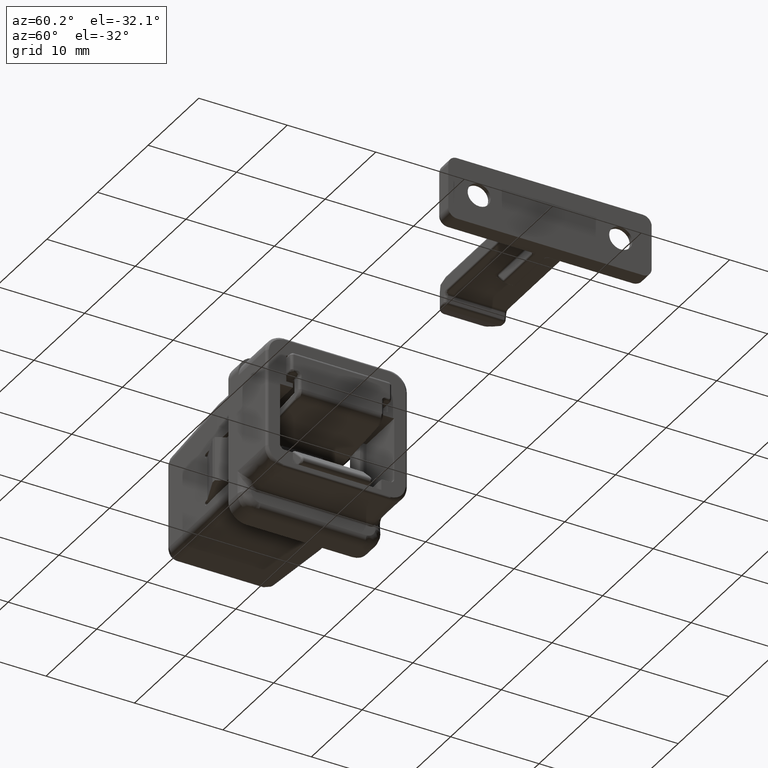
[diagram: clean part render]
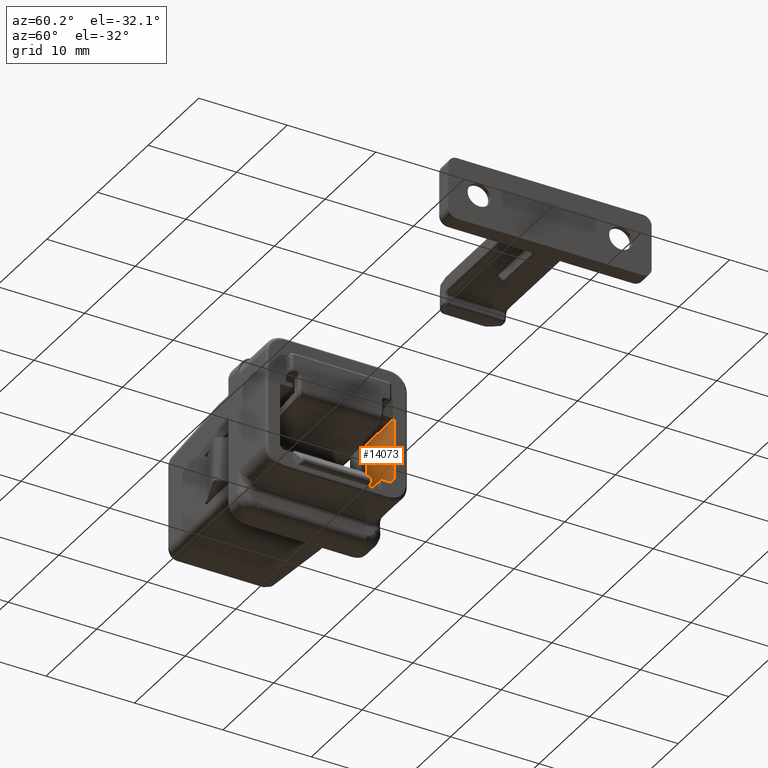
[diagram: same view with one face highlighted and labeled with its STEP entity id]
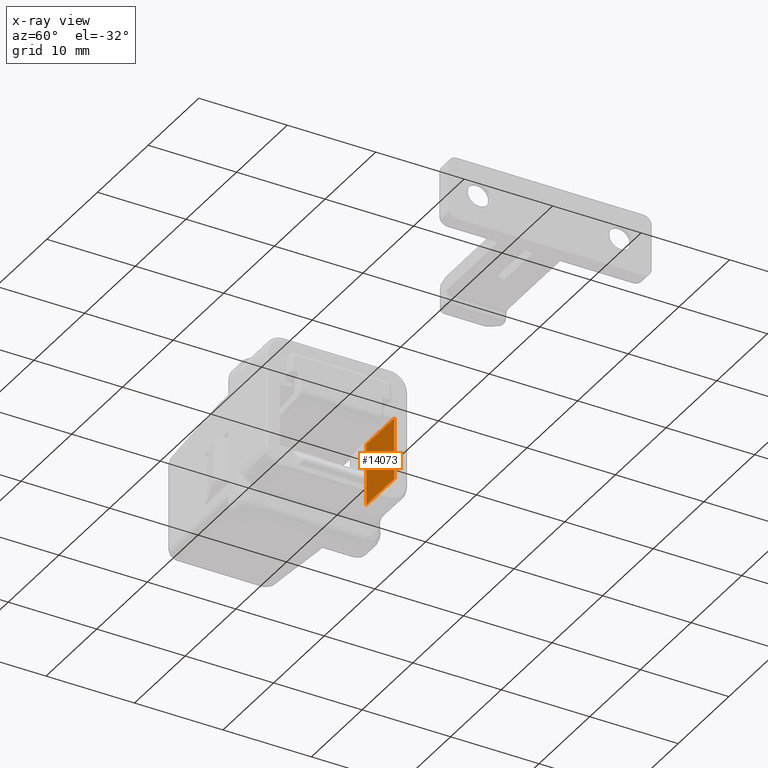
[diagram: x-ray of the same camera — body ghosted, the highlighted face saturated]
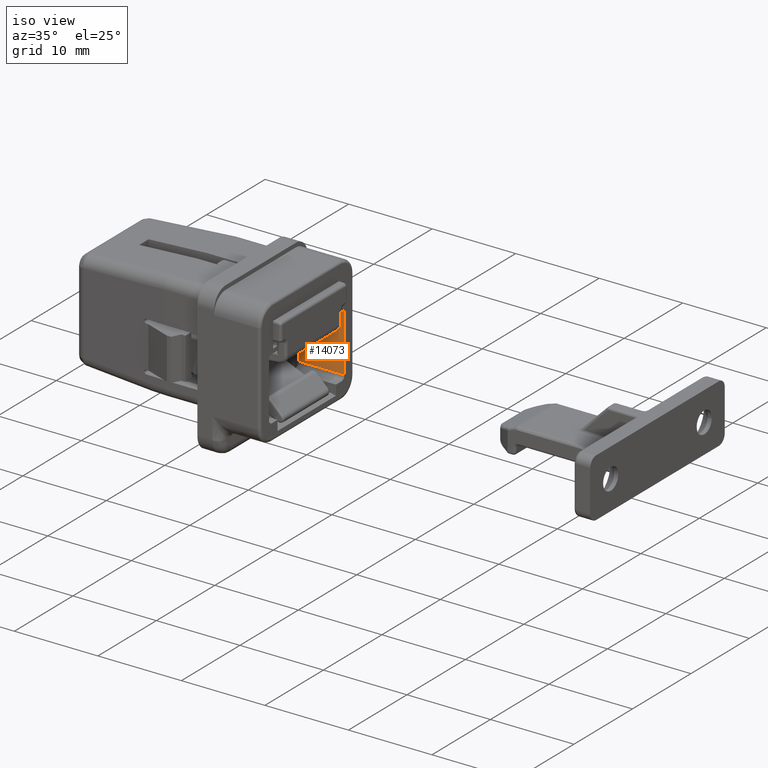
[diagram: same view with one face highlighted and labeled with its STEP entity id]
A machine part, auxiliary view. The second image highlights one B-rep face of the part: STEP entity #14073.
The next image is the same camera in x-ray: the body ghosted, the highlighted face saturated — about 1% of this face is hidden behind the body in this view.
A second angle (iso view) of the same face is appended — the face is thin or edge-on in the first view.
In plain terms, the highlighted face is a freeform B-spline surface patch.
Its self-contained STEP definition (entity closure, byte-faithful):
#12113=CARTESIAN_POINT('',(0.0,6.450000286102350,1.500001430511420));
#12114=VERTEX_POINT('',#12113);
#12120=CARTESIAN_POINT('',(0.0,6.450000047683770,-5.499998927116449));
#12121=VERTEX_POINT('',#12120);
#12122=CARTESIAN_POINT('',(0.0,6.450000047683770,-5.499998927116449));
#12123=CARTESIAN_POINT('',(0.0,6.450000286102350,1.500001430511420));
#12124=QUASI_UNIFORM_CURVE('',1,(#12122,#12123),.UNSPECIFIED.,.F.,.U.);
#12125=EDGE_CURVE('',#12121,#12114,#12124,.T.);
#13975=CARTESIAN_POINT('',(-5.500000000000000,6.450000047683770,-5.499998927116449));
#13976=VERTEX_POINT('',#13975);
#13990=CARTESIAN_POINT('',(-5.500000000000000,6.450000286102350,1.500001430511420));
#13991=VERTEX_POINT('',#13990);
#13992=CARTESIAN_POINT('',(-5.500000000000000,6.450000047683770,-5.499998927116449));
#13993=CARTESIAN_POINT('',(-5.500000000000000,6.450000286102350,1.500001430511420));
#13994=QUASI_UNIFORM_CURVE('',1,(#13992,#13993),.UNSPECIFIED.,.F.,.U.);
#13995=EDGE_CURVE('',#13976,#13991,#13994,.T.);
#14050=CARTESIAN_POINT('',(-5.500000000000000,6.450000286102350,1.500001430511420));
#14051=CARTESIAN_POINT('',(0.0,6.450000286102350,1.500001430511420));
#14052=QUASI_UNIFORM_CURVE('',1,(#14050,#14051),.UNSPECIFIED.,.F.,.U.);
#14053=EDGE_CURVE('',#13991,#12114,#14052,.T.);
#14058=CARTESIAN_POINT('',(-5.774724989339933,6.450000286102350,-5.849648931412601));
#14059=CARTESIAN_POINT('',(-5.774724989339932,6.450000286102350,1.849651622562214));
#14060=CARTESIAN_POINT('',(0.274725136861428,6.450000286102350,-5.849648931412601));
#14061=CARTESIAN_POINT('',(0.274725136861428,6.450000286102350,1.849651622562214));
#14062=B_SPLINE_SURFACE_WITH_KNOTS('',1,1,((#14058,#14060),(#14059,#14061)),.UNSPECIFIED.,.F.,.F.,.U.,(2,2),(2,2),(0.0,7.699300553974815),(0.0,6.049450126201361),.UNSPECIFIED.);
#14063=ORIENTED_EDGE('',*,*,#12125,.T.);
#14064=ORIENTED_EDGE('',*,*,#14053,.F.);
#14065=ORIENTED_EDGE('',*,*,#13995,.F.);
#14066=CARTESIAN_POINT('',(-5.500000000000000,6.450000047683770,-5.499998927116449));
#14067=CARTESIAN_POINT('',(0.0,6.450000047683770,-5.499998927116449));
#14068=QUASI_UNIFORM_CURVE('',1,(#14066,#14067),.UNSPECIFIED.,.F.,.U.);
#14069=EDGE_CURVE('',#13976,#12121,#14068,.T.);
#14070=ORIENTED_EDGE('',*,*,#14069,.T.);
#14071=EDGE_LOOP('',(#14063,#14064,#14065,#14070));
#14072=FACE_OUTER_BOUND('',#14071,.T.);
#14073=ADVANCED_FACE('',(#14072),#14062,.F.);